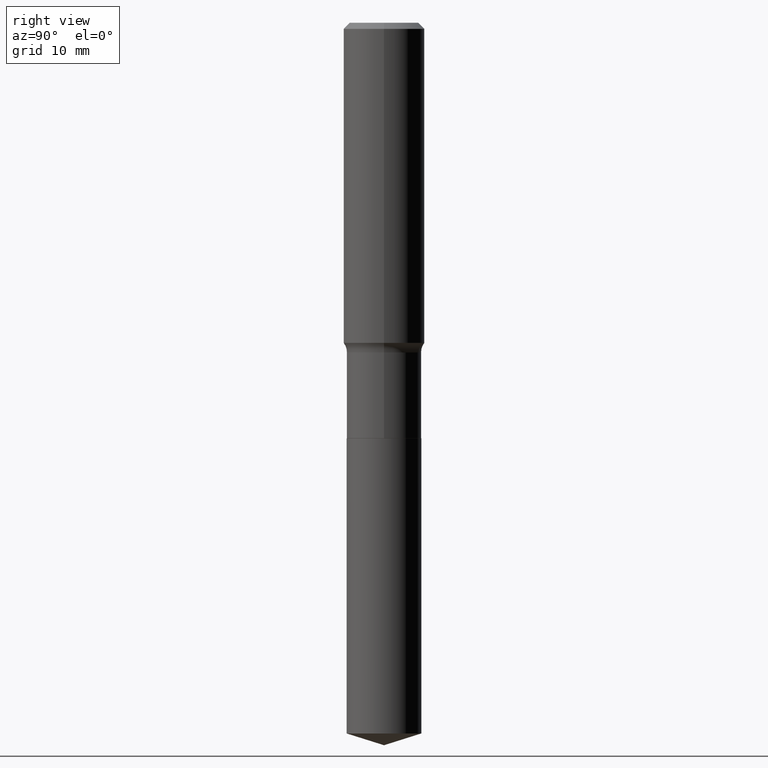
[diagram: clean part render]
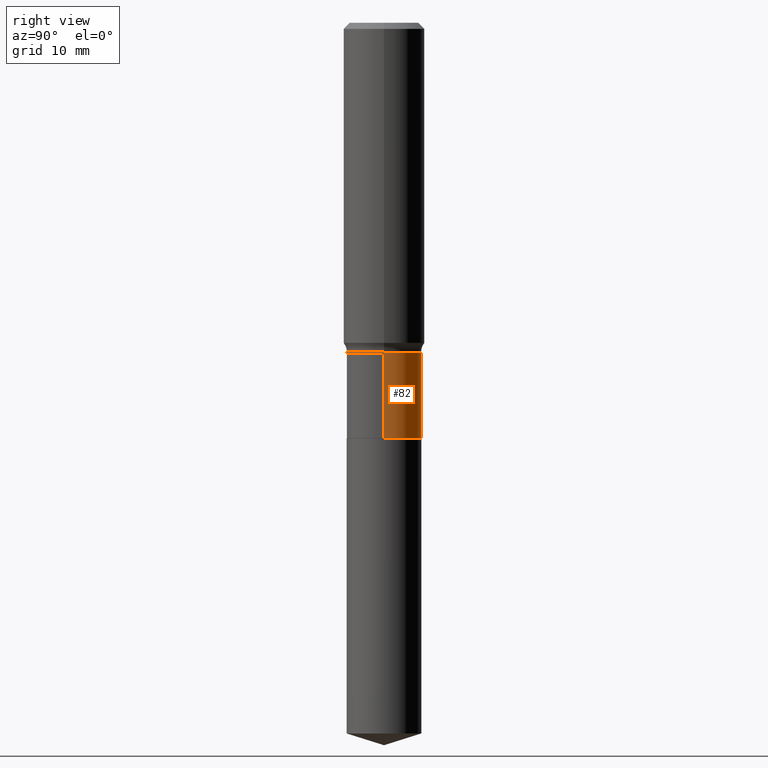
[diagram: same view with one face highlighted and labeled with its STEP entity id]
A machine part, right view. The second image highlights one B-rep face of the part: STEP entity #82.
In plain terms, the highlighted cylindrical surface (partial cylindrical patch) has radius 4.5999 mm, axis along (-0, 0, 1).
Its self-contained STEP definition (entity closure, byte-faithful):
#7 = CARTESIAN_POINT ( 'NONE',  ( 0.000000000000000000, 0.000000000000000000, 0.000000000000000000 ) ) ;
#13 = DIRECTION ( 'NONE',  ( -2.445468806185136877E-29, 3.491481338843145188E-15, 1.000000000000000000 ) ) ;
#34 = CIRCLE ( 'NONE', #61, 0.1810999999999999832 ) ;
#48 = DIRECTION ( 'NONE',  ( 1.000000000000000000, -6.982962677686266711E-15, 4.876176775795936353E-29 ) ) ;
#57 = EDGE_CURVE ( 'NONE', #232, #223, #375, .T. ) ;
#60 = VECTOR ( 'NONE', #487, 39.37007874015748143 ) ;
#61 = AXIS2_PLACEMENT_3D ( 'NONE', #258, #491, #331 ) ;
#73 = CARTESIAN_POINT ( 'NONE',  ( -0.1810999999999999832, -5.023012181095790067E-15, -1.599199999999999733 ) ) ;
#79 = DIRECTION ( 'NONE',  ( -2.445468806185136597E-29, 3.491481338843145583E-15, 1.000000000000000000 ) ) ;
#80 = CARTESIAN_POINT ( 'NONE',  ( 4.928108738224286960E-29, -7.036033194036706451E-15, -2.015199999999999658 ) ) ;
#82 = ADVANCED_FACE ( 'NONE', ( #431 ), #91, .T. ) ;
#91 = CYLINDRICAL_SURFACE ( 'NONE', #312, 0.1811000000000000110 ) ;
#110 = EDGE_CURVE ( 'NONE', #271, #309, #349, .T. ) ;
#117 = DIRECTION ( 'NONE',  ( -2.445468806185136597E-29, 3.491481338843145583E-15, 1.000000000000000000 ) ) ;
#139 = CIRCLE ( 'NONE', #213, 0.1811000000000000110 ) ;
#152 = ORIENTED_EDGE ( 'NONE', *, *, #192, .T. ) ;
#179 = CARTESIAN_POINT ( 'NONE',  ( -0.1811000000000000110, -5.023012181095790067E-15, -2.015199999999999658 ) ) ;
#192 = EDGE_CURVE ( 'NONE', #232, #271, #139, .T. ) ;
#213 = AXIS2_PLACEMENT_3D ( 'NONE', #80, #117, #425 ) ;
#216 = CARTESIAN_POINT ( 'NONE',  ( 0.1810999999999999832, -6.848191498006940046E-15, -1.599199999999999733 ) ) ;
#223 = VERTEX_POINT ( 'NONE', #216 ) ;
#232 = VERTEX_POINT ( 'NONE', #413 ) ;
#247 = EDGE_LOOP ( 'NONE', ( #152, #398, #253, #279 ) ) ;
#250 = VECTOR ( 'NONE', #13, 39.37007874015748143 ) ;
#253 = ORIENTED_EDGE ( 'NONE', *, *, #269, .F. ) ;
#258 = CARTESIAN_POINT ( 'NONE',  ( 3.910793714851269512E-29, -5.583576957077957107E-15, -1.599199999999999733 ) ) ;
#269 = EDGE_CURVE ( 'NONE', #223, #309, #34, .T. ) ;
#271 = VERTEX_POINT ( 'NONE', #179 ) ;
#279 = ORIENTED_EDGE ( 'NONE', *, *, #57, .F. ) ;
#309 = VERTEX_POINT ( 'NONE', #73 ) ;
#312 = AXIS2_PLACEMENT_3D ( 'NONE', #7, #79, #48 ) ;
#331 = DIRECTION ( 'NONE',  ( 1.000000000000000000, -6.982962677686267499E-15, 0.000000000000000000 ) ) ;
#349 = LINE ( 'NONE', #380, #250 ) ;
#375 = LINE ( 'NONE', #424, #60 ) ;
#380 = CARTESIAN_POINT ( 'NONE',  ( -0.1811000000000000110, 1.286792894461541515E-15, -8.908191448451634438E-30 ) ) ;
#398 = ORIENTED_EDGE ( 'NONE', *, *, #110, .T. ) ;
#413 = CARTESIAN_POINT ( 'NONE',  ( 0.1811000000000000110, -8.300647734965688602E-15, -2.015199999999999658 ) ) ;
#424 = CARTESIAN_POINT ( 'NONE',  ( 0.1811000000000000110, -1.264614540928982939E-15, 8.830756140966441615E-30 ) ) ;
#425 = DIRECTION ( 'NONE',  ( 1.000000000000000000, -6.982962677686266711E-15, 0.000000000000000000 ) ) ;
#431 = FACE_OUTER_BOUND ( 'NONE', #247, .T. ) ;
#487 = DIRECTION ( 'NONE',  ( -2.445468806185136877E-29, 3.491481338843145188E-15, 1.000000000000000000 ) ) ;
#491 = DIRECTION ( 'NONE',  ( -2.445468806185136597E-29, 3.491481338843145583E-15, 1.000000000000000000 ) ) ;